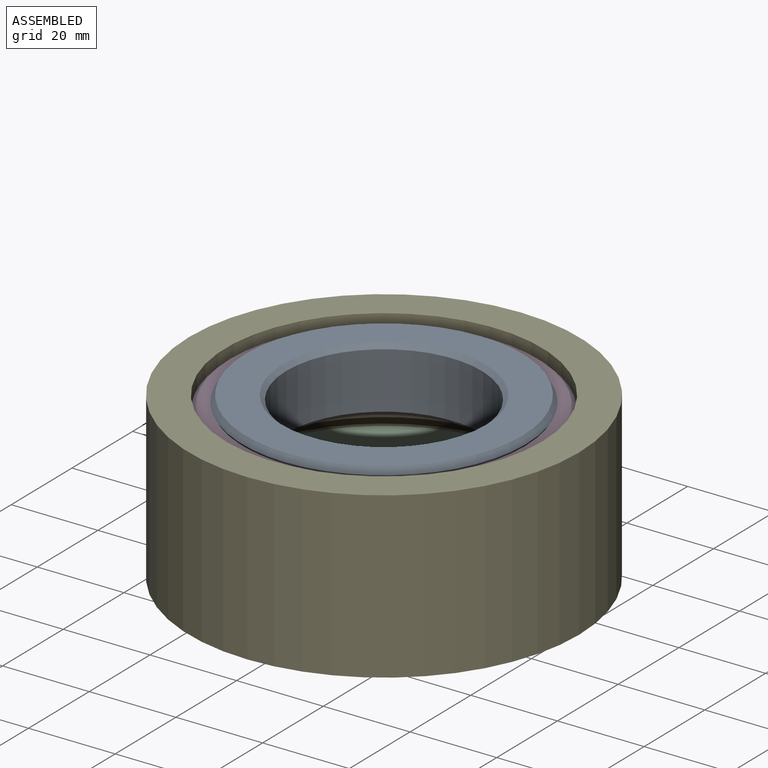
[diagram: assembled view]
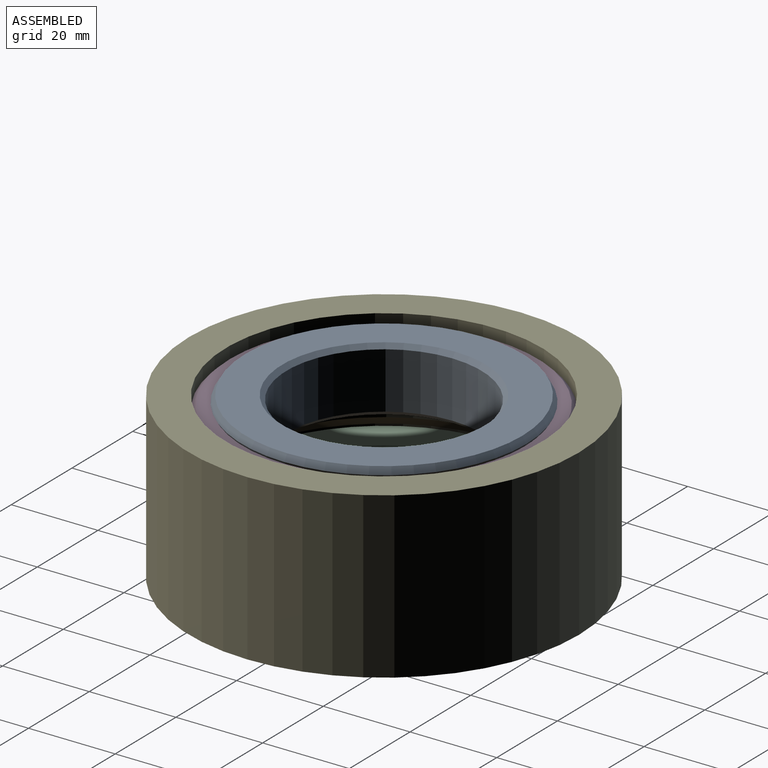
[diagram: assembled view, second angle]
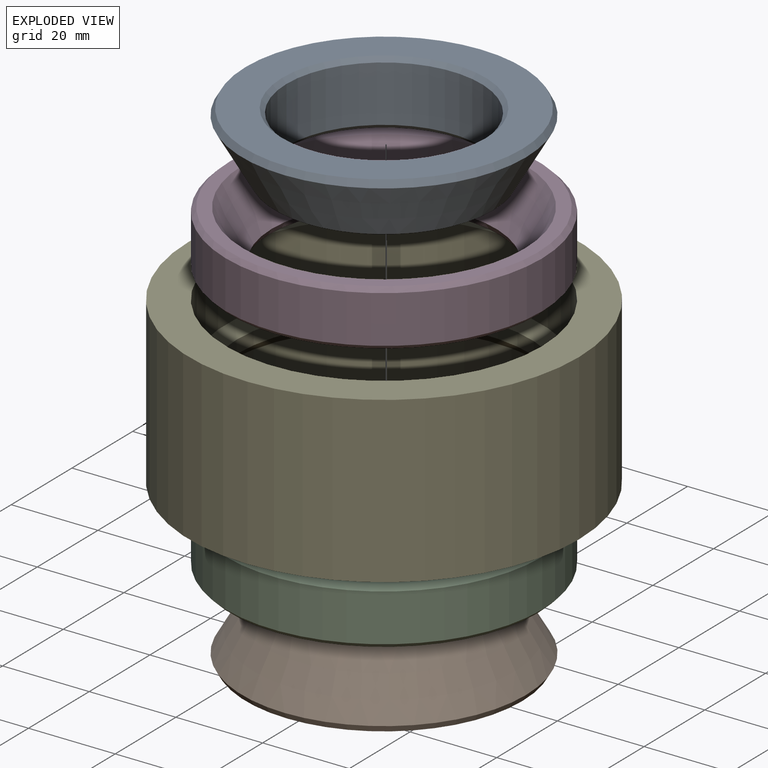
[diagram: exploded view]
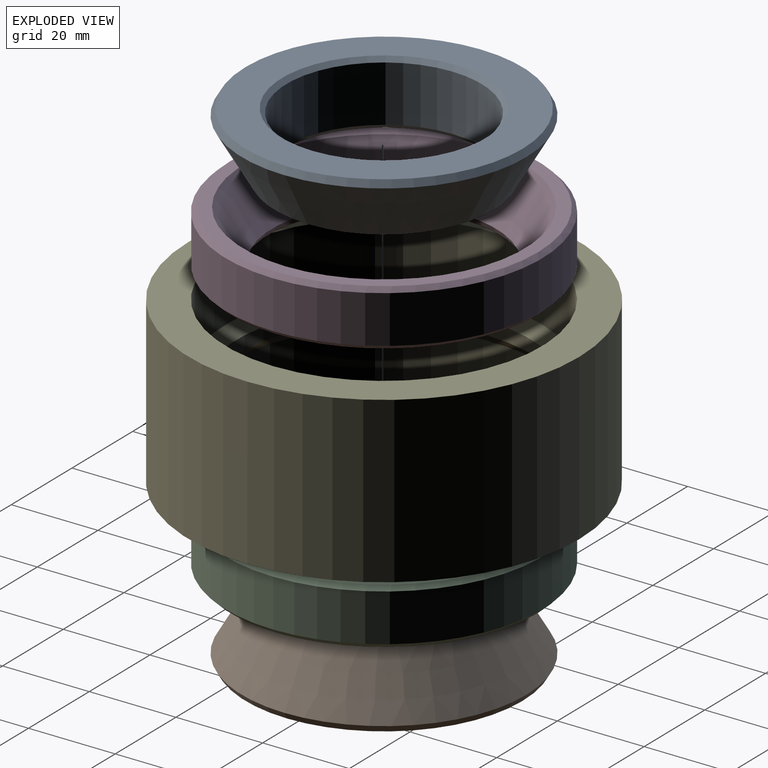
[diagram: exploded view, second angle]
ASSEMBLY  parts=5 mates=4
PART A: 8 faces, bbox 65.6x65.6x15 mm
  f0: cone r=25mm half-angle=30deg, axis (0,0,1), area 2739.1mm2, adj f5,f6
  f1: plane 63.86x63.86mm, normal (0,0,1), area 1467.6mm2, adj f6,f7
  f2: plane 48.85x48.85mm, normal (0,0,-1), area 138.9mm2, adj f4,f5
  f3: cylinder r=22.5mm len=45mm, axis (0,0,-1), area 1837.8mm2, adj f4,f7
  f4: cone r=23.5mm half-angle=45deg, axis (0,0,-1), area 204.4mm2, adj f2,f3
  f5: cone r=25.29mm half-angle=60deg, axis (0,0,1), area 156.2mm2, adj f0,f2
  f6: cone r=31.93mm half-angle=30deg, axis (0,0,-1), area 352.2mm2, adj f0,f1
  f7: cone r=23.5mm half-angle=45deg, axis (0,0,1), area 204.4mm2, adj f1,f3
PART B: same geometry as A
PART C: 7 faces, bbox 73x73x13 mm
  f0: cylinder r=36.5mm len=73mm, axis (0,0,-1), area 2522.7mm2, adj f5,f6
  f1: plane 71x71mm, normal (0,0,1), area 639.8mm2, adj f3,f6
  f2: plane 71x71mm, normal (0,0,-1), area 1714.2mm2, adj f4,f5
  f3: cone r=25mm half-angle=30deg, axis (0,0,1), area 2435.1mm2, adj f1,f4
  f4: cone r=26.73mm half-angle=30deg, axis (0,0,-1), area 286.2mm2, adj f2,f3
  f5: cone r=36.5mm half-angle=45deg, axis (0,0,1), area 319.9mm2, adj f0,f2
  f6: cone r=35.5mm half-angle=45deg, axis (0,0,-1), area 319.9mm2, adj f0,f1
PART D: same geometry as C
PART E: 8 faces, bbox 90x90x38 mm
  f0: cylinder r=36.5mm len=73mm, axis (0,0,-1), area 3440mm2, adj f4,f6
  f1: cylinder r=36.5mm len=73mm, axis (0,0,-1), area 3440mm2, adj f3,f7
  f2: cylinder r=45mm len=90mm, axis (0,0,-1), area 10744.2mm2, adj f3,f4
  f3: plane 90x90mm, normal (0,0,1), area 2176.3mm2, adj f1,f2
  f4: plane 90x90mm, normal (0,0,-1), area 2176.3mm2, adj f0,f2
  f5: cylinder r=34mm len=68mm, axis (0,0,-1), area 640.9mm2, adj f6,f7
  f6: cone r=36.5mm half-angle=45deg, axis (0,0,-1), area 783.1mm2, adj f0,f5
  f7: cone r=34mm half-angle=45deg, axis (0,0,1), area 783.1mm2, adj f1,f5
PLACE A t=(0,0,23)mm
PLACE B rot(axis=(1,0,0),180deg) t=(0,0,15)mm
PLACE C rot(axis=(1,0,0),180deg) t=(0,0,15)mm
PLACE D t=(0,0,23)mm
PLACE E at identity fixed
MATE revolute C.f3 <-> B.f3  axis (0,0,1) through (0,0,15)mm
MATE fastened C.f0 <-> E.f0  axis (0,0,1) through (0,0,15)mm
MATE revolute A.f3 <-> D.f3  axis (0,0,-1) through (0,0,23)mm
MATE fastened D.f0 <-> E.f0  axis (0,0,-1) through (0,0,23)mm
